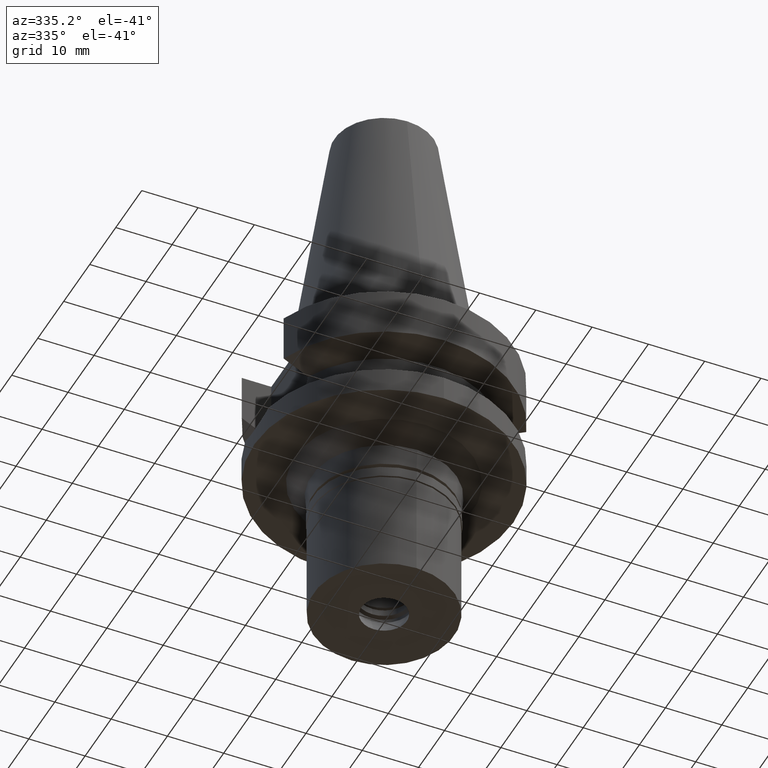
[diagram: clean part render]
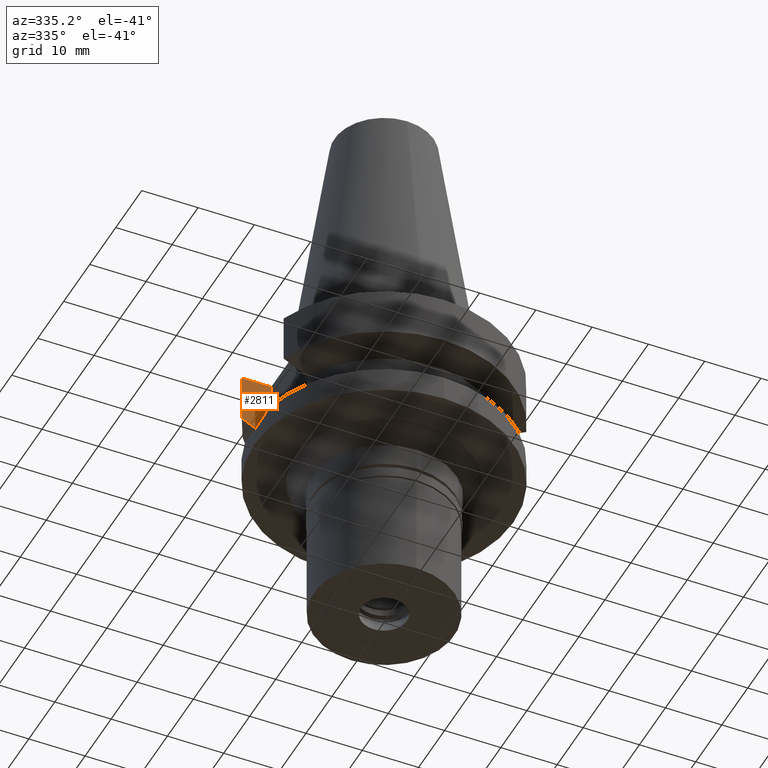
[diagram: same view with one face highlighted and labeled with its STEP entity id]
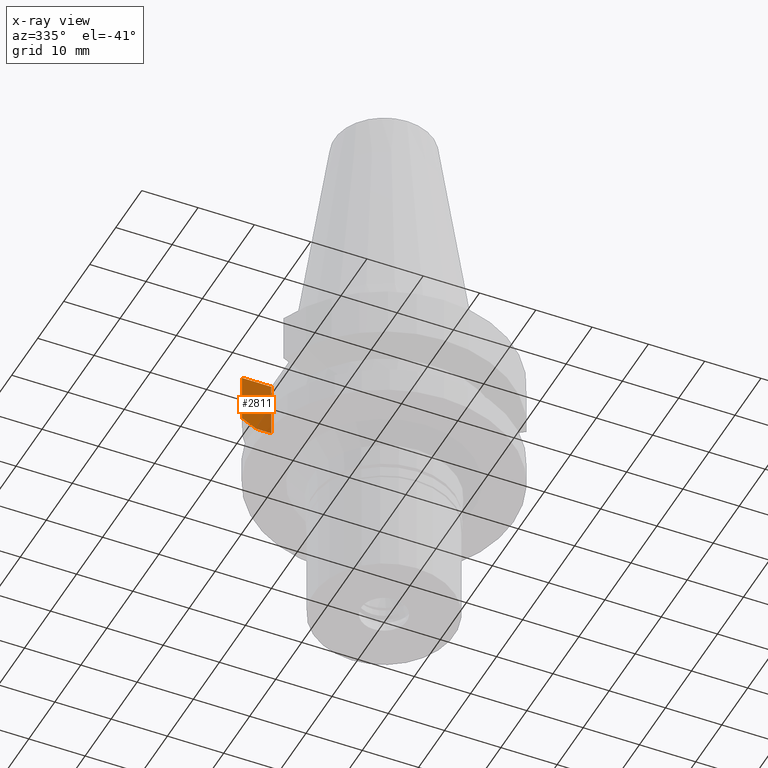
[diagram: x-ray of the same camera — body ghosted, the highlighted face saturated]
A machine part, auxiliary view. The second image highlights one B-rep face of the part: STEP entity #2811.
The next image is the same camera in x-ray: the body ghosted, the highlighted face saturated — about 17% of this face is hidden behind the body in this view.
In plain terms, the highlighted planar face has unit normal (0, 1, 0).
Its self-contained STEP definition (entity closure, byte-faithful):
#54 = B_SPLINE_CURVE_WITH_KNOTS ( 'NONE', 3,
 ( #231, #2305, #2726, #2987 ),
 .UNSPECIFIED., .F., .F.,
 ( 4, 4 ),
 ( 0.0000000000000000000, 1.000000000000000000 ),
 .UNSPECIFIED. ) ;
#96 = ORIENTED_EDGE ( 'NONE', *, *, #1328, .T. ) ;
#108 = VERTEX_POINT ( 'NONE', #1863 ) ;
#118 = VERTEX_POINT ( 'NONE', #635 ) ;
#155 = DIRECTION ( 'NONE',  ( -0.0000000000000000000, 1.000000000000000000, 0.0000000000000000000 ) ) ;
#231 = CARTESIAN_POINT ( 'NONE',  ( -18.96736186674000280, 8.050001277723000115, -10.94999977542999936 ) ) ;
#236 = VECTOR ( 'NONE', #2028, 1000.000000000000114 ) ;
#289 = VECTOR ( 'NONE', #351, 1000.000000000000000 ) ;
#351 = DIRECTION ( 'NONE',  ( 0.0000000000000000000, 0.0000000000000000000, 1.000000000000000000 ) ) ;
#361 = LINE ( 'NONE', #1324, #236 ) ;
#378 = VECTOR ( 'NONE', #583, 1000.000000000000000 ) ;
#510 = ORIENTED_EDGE ( 'NONE', *, *, #1568, .T. ) ;
#583 = DIRECTION ( 'NONE',  ( -1.000000000000000000, 9.347030801892000173E-14, 0.0000000000000000000 ) ) ;
#635 = CARTESIAN_POINT ( 'NONE',  ( -21.54524309446999908, 8.050000000000000711, -1.000000000000000000 ) ) ;
#1005 = CARTESIAN_POINT ( 'NONE',  ( -21.54524231189000005, 8.050002094537999753, -9.567194606710000215 ) ) ;
#1045 = LINE ( 'NONE', #1533, #289 ) ;
#1324 = CARTESIAN_POINT ( 'NONE',  ( -18.96736186674000280, 8.050001277723000115, -10.94999977542999936 ) ) ;
#1328 = EDGE_CURVE ( 'NONE', #108, #2924, #361, .T. ) ;
#1435 = CARTESIAN_POINT ( 'NONE',  ( -16.29999999999999716, 8.050000000000000711, -1.000000000000000000 ) ) ;
#1532 = ORIENTED_EDGE ( 'NONE', *, *, #1625, .F. ) ;
#1533 = CARTESIAN_POINT ( 'NONE',  ( -16.29999999999999716, 8.050000000000000711, -10.94999999999999929 ) ) ;
#1568 = EDGE_CURVE ( 'NONE', #118, #2296, #1867, .T. ) ;
#1625 = EDGE_CURVE ( 'NONE', #108, #2296, #54, .T. ) ;
#1631 = VERTEX_POINT ( 'NONE', #1435 ) ;
#1753 = CARTESIAN_POINT ( 'NONE',  ( -16.29999999999999716, 8.050000000000000711, -10.94999999999999929 ) ) ;
#1777 = LINE ( 'NONE', #2705, #378 ) ;
#1856 = FACE_OUTER_BOUND ( 'NONE', #2077, .T. ) ;
#1863 = CARTESIAN_POINT ( 'NONE',  ( -18.96736186674000280, 8.050001277723000115, -10.94999977542999936 ) ) ;
#1867 = LINE ( 'NONE', #2994, #2657 ) ;
#1871 = PLANE ( 'NONE',  #1904 ) ;
#1904 = AXIS2_PLACEMENT_3D ( 'NONE', #2297, #155, #2798 ) ;
#2020 = ORIENTED_EDGE ( 'NONE', *, *, #2494, .T. ) ;
#2028 = DIRECTION ( 'NONE',  ( 0.9999999999998816502, -4.790213571376908798E-07, -8.419267157844838431E-08 ) ) ;
#2077 = EDGE_LOOP ( 'NONE', ( #96, #2115, #2020, #510, #1532 ) ) ;
#2115 = ORIENTED_EDGE ( 'NONE', *, *, #2455, .T. ) ;
#2296 = VERTEX_POINT ( 'NONE', #1005 ) ;
#2297 = CARTESIAN_POINT ( 'NONE',  ( -16.29999999999999716, 8.050000000000000711, -1.000000000000000000 ) ) ;
#2305 = CARTESIAN_POINT ( 'NONE',  ( -19.78176599729542318, 8.050001299788604570, -10.51717224217189006 ) ) ;
#2320 = DIRECTION ( 'NONE',  ( 9.134698275664688685E-08, 2.444834615596914568E-07, -0.9999999999999659162 ) ) ;
#2455 = EDGE_CURVE ( 'NONE', #2924, #1631, #1045, .T. ) ;
#2494 = EDGE_CURVE ( 'NONE', #1631, #118, #1777, .T. ) ;
#2657 = VECTOR ( 'NONE', #2320, 1000.000000000000114 ) ;
#2705 = CARTESIAN_POINT ( 'NONE',  ( -16.29999999999999716, 8.050000000000000711, -1.000000000000000000 ) ) ;
#2726 = CARTESIAN_POINT ( 'NONE',  ( -20.64102060459518384, 8.050004185766360010, -10.05624058887162064 ) ) ;
#2798 = DIRECTION ( 'NONE',  ( 1.000000000000000000, 0.0000000000000000000, 0.0000000000000000000 ) ) ;
#2811 = ADVANCED_FACE ( 'NONE', ( #1856 ), #1871, .F. ) ;
#2924 = VERTEX_POINT ( 'NONE', #1753 ) ;
#2987 = CARTESIAN_POINT ( 'NONE',  ( -21.54524231189000005, 8.050002094537999753, -9.567194606710000215 ) ) ;
#2994 = CARTESIAN_POINT ( 'NONE',  ( -21.54524309446999908, 8.050000000000000711, -1.000000000000000000 ) ) ;